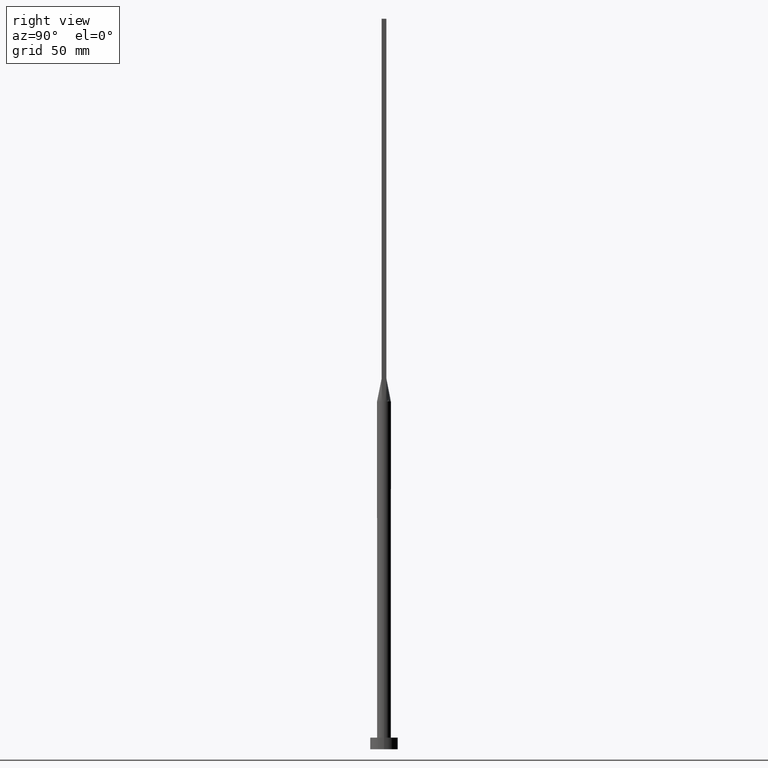
[diagram: clean part render]
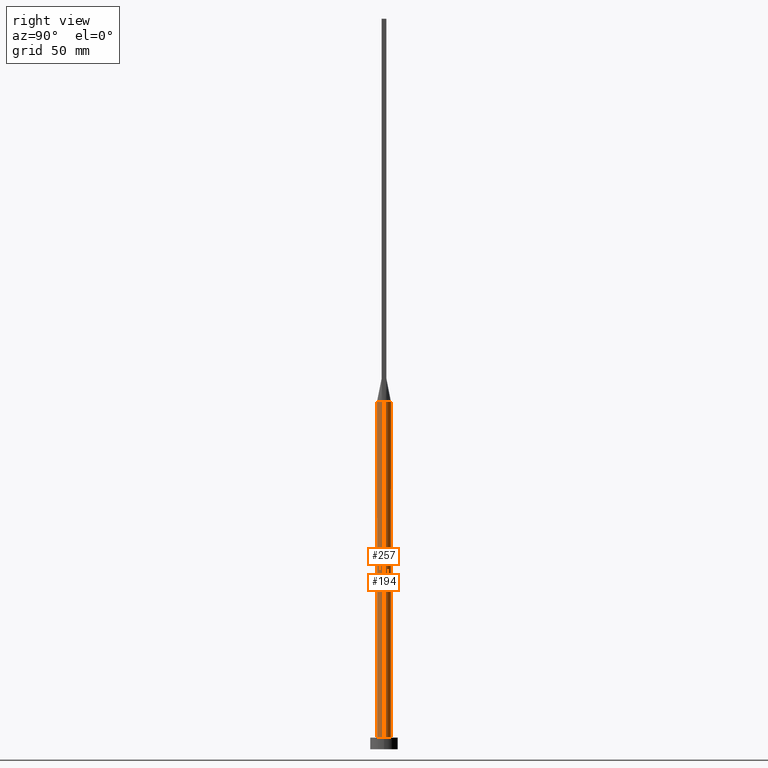
[diagram: same view with one multi-face feature highlighted, each face labeled with its STEP entity id]
A machine part, right view. The highlighted faces form ONE feature: a constant-radius fillet chain: 2 tangent blend faces with common blend radius 3 mm. The faces share edges in the B-rep.
Their STEP definitions:
[1] entity #257 (Cylinder):
#8 = VECTOR ( 'NONE', #148, 1000.000000000000000 ) ;
#11 = AXIS2_PLACEMENT_3D ( 'NONE', #69, #274, #497 ) ;
#15 = LINE ( 'NONE', #581, #8 ) ;
#20 = EDGE_CURVE ( 'NONE', #365, #25, #297, .T. ) ;
#25 = VERTEX_POINT ( 'NONE', #481 ) ;
#28 = ORIENTED_EDGE ( 'NONE', *, *, #20, .T. ) ;
#51 = CARTESIAN_POINT ( 'NONE',  ( 0.000000000000000000, 0.000000000000000000, 150.0000000000000000 ) ) ;
#54 = DIRECTION ( 'NONE',  ( 1.000000000000000000, 0.000000000000000000, 0.000000000000000000 ) ) ;
#57 = CARTESIAN_POINT ( 'NONE',  ( 2.819430526142641558, -1.025247683279450817, 150.0000000000000000 ) ) ;
#67 = EDGE_CURVE ( 'NONE', #544, #119, #183, .T. ) ;
#69 = CARTESIAN_POINT ( 'NONE',  ( 0.000000000000000000, 0.000000000000000000, 150.0000000000000000 ) ) ;
#70 = ORIENTED_EDGE ( 'NONE', *, *, #67, .F. ) ;
#93 = DIRECTION ( 'NONE',  ( 0.000000000000000000, 0.000000000000000000, 1.000000000000000000 ) ) ;
#99 = AXIS2_PLACEMENT_3D ( 'NONE', #173, #534, #509 ) ;
#100 = DIRECTION ( 'NONE',  ( 1.000000000000000000, 0.000000000000000000, 0.000000000000000000 ) ) ;
#119 = VERTEX_POINT ( 'NONE', #57 ) ;
#130 = EDGE_CURVE ( 'NONE', #25, #427, #448, .T. ) ;
#141 = VECTOR ( 'NONE', #488, 1000.000000000000000 ) ;
#148 = DIRECTION ( 'NONE',  ( -0.000000000000000000, -0.000000000000000000, -1.000000000000000000 ) ) ;
#173 = CARTESIAN_POINT ( 'NONE',  ( 0.000000000000000000, 0.000000000000000000, 150.0000000000000000 ) ) ;
#183 = CIRCLE ( 'NONE', #482, 3.000000000000000444 ) ;
#185 = EDGE_CURVE ( 'NONE', #365, #544, #277, .T. ) ;
#202 = CARTESIAN_POINT ( 'NONE',  ( 3.000000000000000444, 3.673940397442060361E-16, 5.000000000000000000 ) ) ;
#203 = CARTESIAN_POINT ( 'NONE',  ( -3.000000000000000444, 0.000000000000000000, 150.0000000000000000 ) ) ;
#230 = ORIENTED_EDGE ( 'NONE', *, *, #542, .F. ) ;
#239 = FACE_OUTER_BOUND ( 'NONE', #380, .T. ) ;
#257 = ADVANCED_FACE ( 'NONE', ( #239 ), #554, .T. ) ;
#274 = DIRECTION ( 'NONE',  ( 0.000000000000000000, 0.000000000000000000, 1.000000000000000000 ) ) ;
#277 = CIRCLE ( 'NONE', #99, 3.000000000000000444 ) ;
#285 = DIRECTION ( 'NONE',  ( -0.000000000000000000, -0.000000000000000000, -1.000000000000000000 ) ) ;
#297 = LINE ( 'NONE', #203, #141 ) ;
#323 = CARTESIAN_POINT ( 'NONE',  ( 0.000000000000000000, 0.000000000000000000, 150.0000000000000000 ) ) ;
#324 = VERTEX_POINT ( 'NONE', #464 ) ;
#332 = ORIENTED_EDGE ( 'NONE', *, *, #571, .F. ) ;
#365 = VERTEX_POINT ( 'NONE', #468 ) ;
#368 = CARTESIAN_POINT ( 'NONE',  ( 0.000000000000000000, 0.000000000000000000, 5.000000000000000000 ) ) ;
#379 = AXIS2_PLACEMENT_3D ( 'NONE', #323, #285, #387 ) ;
#380 = EDGE_LOOP ( 'NONE', ( #332, #230, #70, #400, #28, #389 ) ) ;
#387 = DIRECTION ( 'NONE',  ( -1.000000000000000000, 0.000000000000000000, 0.000000000000000000 ) ) ;
#389 = ORIENTED_EDGE ( 'NONE', *, *, #130, .T. ) ;
#400 = ORIENTED_EDGE ( 'NONE', *, *, #185, .F. ) ;
#405 = CIRCLE ( 'NONE', #11, 3.000000000000000444 ) ;
#427 = VERTEX_POINT ( 'NONE', #202 ) ;
#448 = CIRCLE ( 'NONE', #473, 3.000000000000000444 ) ;
#458 = DIRECTION ( 'NONE',  ( 0.000000000000000000, 0.000000000000000000, 1.000000000000000000 ) ) ;
#464 = CARTESIAN_POINT ( 'NONE',  ( 3.000000000000000444, 7.514166843208536743E-18, 149.9999999999999716 ) ) ;
#468 = CARTESIAN_POINT ( 'NONE',  ( -3.000000000000000444, -1.370010780910363192E-16, 149.9999999999999716 ) ) ;
#473 = AXIS2_PLACEMENT_3D ( 'NONE', #368, #458, #54 ) ;
#481 = CARTESIAN_POINT ( 'NONE',  ( -3.000000000000000444, 0.000000000000000000, 5.000000000000000000 ) ) ;
#482 = AXIS2_PLACEMENT_3D ( 'NONE', #51, #93, #100 ) ;
#488 = DIRECTION ( 'NONE',  ( -0.000000000000000000, -0.000000000000000000, -1.000000000000000000 ) ) ;
#497 = DIRECTION ( 'NONE',  ( 1.000000000000000000, 8.881784197001252323E-16, 0.000000000000000000 ) ) ;
#509 = DIRECTION ( 'NONE',  ( 1.000000000000000000, 0.000000000000000000, 0.000000000000000000 ) ) ;
#534 = DIRECTION ( 'NONE',  ( 0.000000000000000000, 0.000000000000000000, 1.000000000000000000 ) ) ;
#538 = CARTESIAN_POINT ( 'NONE',  ( -2.819413526938078007, -1.025241406939941369, 150.0000000000000000 ) ) ;
#542 = EDGE_CURVE ( 'NONE', #119, #324, #405, .T. ) ;
#544 = VERTEX_POINT ( 'NONE', #538 ) ;
#554 = CYLINDRICAL_SURFACE ( 'NONE', #379, 3.000000000000000444 ) ;
#571 = EDGE_CURVE ( 'NONE', #324, #427, #15, .T. ) ;
#581 = CARTESIAN_POINT ( 'NONE',  ( 3.000000000000000444, 3.673940397442060361E-16, 150.0000000000000000 ) ) ;
[2] entity #194 (Cylinder):
#8 = VECTOR ( 'NONE', #148, 1000.000000000000000 ) ;
#10 = EDGE_CURVE ( 'NONE', #427, #25, #527, .T. ) ;
#15 = LINE ( 'NONE', #581, #8 ) ;
#20 = EDGE_CURVE ( 'NONE', #365, #25, #297, .T. ) ;
#24 = CYLINDRICAL_SURFACE ( 'NONE', #235, 3.000000000000000444 ) ;
#25 = VERTEX_POINT ( 'NONE', #481 ) ;
#31 = CARTESIAN_POINT ( 'NONE',  ( 0.000000000000000000, 0.000000000000000000, 5.000000000000000000 ) ) ;
#44 = CIRCLE ( 'NONE', #367, 3.000000000000000444 ) ;
#47 = EDGE_CURVE ( 'NONE', #574, #365, #44, .T. ) ;
#53 = CARTESIAN_POINT ( 'NONE',  ( -2.739088299662392423, 1.246032108968142316, 150.0000000000000284 ) ) ;
#55 = EDGE_LOOP ( 'NONE', ( #129, #113, #430, #321, #359, #271 ) ) ;
#56 = CARTESIAN_POINT ( 'NONE',  ( 2.625980160873452540, 1.476334031700886618, 150.0000000000000000 ) ) ;
#72 = CARTESIAN_POINT ( 'NONE',  ( 2.739088299662392867, 1.246032108968142538, 150.0000000000000568 ) ) ;
#81 = DIRECTION ( 'NONE',  ( 1.000000000000000000, 0.000000000000000000, 0.000000000000000000 ) ) ;
#85 = EDGE_CURVE ( 'NONE', #324, #335, #413, .T. ) ;
#94 = CARTESIAN_POINT ( 'NONE',  ( 1.338960936578149630, 2.706038443291637563, 150.0000000000000000 ) ) ;
#113 = ORIENTED_EDGE ( 'NONE', *, *, #571, .T. ) ;
#129 = ORIENTED_EDGE ( 'NONE', *, *, #85, .F. ) ;
#140 = DIRECTION ( 'NONE',  ( 0.000000000000000000, 0.000000000000000000, 1.000000000000000000 ) ) ;
#141 = VECTOR ( 'NONE', #488, 1000.000000000000000 ) ;
#148 = DIRECTION ( 'NONE',  ( -0.000000000000000000, -0.000000000000000000, -1.000000000000000000 ) ) ;
#152 = CARTESIAN_POINT ( 'NONE',  ( -2.819429393986302657, 1.025247261300842760, 150.0000000000000000 ) ) ;
#172 = DIRECTION ( 'NONE',  ( 0.000000000000000000, 0.000000000000000000, 1.000000000000000000 ) ) ;
#176 = CARTESIAN_POINT ( 'NONE',  ( -1.627925520694712747, 2.539128397820341831, 150.0000000000000284 ) ) ;
#179 = CARTESIAN_POINT ( 'NONE',  ( 2.314486317179579977, 1.928337902455807384, 150.0000000000000568 ) ) ;
#192 = CARTESIAN_POINT ( 'NONE',  ( -2.819429393986302657, 1.025247261300842760, 150.0000000000000000 ) ) ;
#194 = ADVANCED_FACE ( 'NONE', ( #282 ), #24, .T. ) ;
#202 = CARTESIAN_POINT ( 'NONE',  ( 3.000000000000000444, 3.673940397442060361E-16, 5.000000000000000000 ) ) ;
#203 = CARTESIAN_POINT ( 'NONE',  ( -3.000000000000000444, 0.000000000000000000, 150.0000000000000000 ) ) ;
#213 = DIRECTION ( 'NONE',  ( 0.000000000000000000, 0.000000000000000000, 1.000000000000000000 ) ) ;
#224 = CARTESIAN_POINT ( 'NONE',  ( -2.625980160873452096, 1.476334031700886396, 150.0000000000000000 ) ) ;
#231 = CARTESIAN_POINT ( 'NONE',  ( -1.338960936578149408, 2.706038443291637119, 150.0000000000000284 ) ) ;
#235 = AXIS2_PLACEMENT_3D ( 'NONE', #506, #372, #549 ) ;
#242 = CARTESIAN_POINT ( 'NONE',  ( -2.314486317179579977, 1.928337902455808051, 150.0000000000000284 ) ) ;
#246 = CARTESIAN_POINT ( 'NONE',  ( -2.115507543051069916, 2.149870311632977593, 150.0000000000000568 ) ) ;
#271 = ORIENTED_EDGE ( 'NONE', *, *, #545, .F. ) ;
#275 = AXIS2_PLACEMENT_3D ( 'NONE', #31, #172, #343 ) ;
#282 = FACE_OUTER_BOUND ( 'NONE', #55, .T. ) ;
#297 = LINE ( 'NONE', #203, #141 ) ;
#313 = CARTESIAN_POINT ( 'NONE',  ( -0.3502136323054376721, 2.999999999999999112, 150.0000000000000284 ) ) ;
#315 = CARTESIAN_POINT ( 'NONE',  ( 0.6998073349918605413, 2.936959335800557014, 150.0000000000000000 ) ) ;
#321 = ORIENTED_EDGE ( 'NONE', *, *, #20, .F. ) ;
#324 = VERTEX_POINT ( 'NONE', #464 ) ;
#335 = VERTEX_POINT ( 'NONE', #515 ) ;
#343 = DIRECTION ( 'NONE',  ( 1.000000000000000000, 0.000000000000000000, 0.000000000000000000 ) ) ;
#359 = ORIENTED_EDGE ( 'NONE', *, *, #47, .F. ) ;
#360 = CARTESIAN_POINT ( 'NONE',  ( 2.115507543051069916, 2.149870311632976705, 150.0000000000000284 ) ) ;
#365 = VERTEX_POINT ( 'NONE', #468 ) ;
#367 = AXIS2_PLACEMENT_3D ( 'NONE', #566, #213, #81 ) ;
#372 = DIRECTION ( 'NONE',  ( -0.000000000000000000, -0.000000000000000000, -1.000000000000000000 ) ) ;
#413 = CIRCLE ( 'NONE', #491, 3.000000000000000444 ) ;
#427 = VERTEX_POINT ( 'NONE', #202 ) ;
#430 = ORIENTED_EDGE ( 'NONE', *, *, #10, .T. ) ;
#440 = B_SPLINE_CURVE_WITH_KNOTS ( 'NONE', 3,
 ( #495, #72, #56, #179, #360, #455, #94, #315, #452, #313, #555, #231, #176, #246, #242, #224, #53, #192 ),
 .UNSPECIFIED., .F., .F.,
 ( 4, 2, 2, 2, 2, 2, 2, 2, 4 ),
 ( 0.000000000000000000, 0.1249999999999998890, 0.2499999999999997780, 0.3749999999999997780, 0.4999999999999997780, 0.6249999999999997780, 0.7499999999999997780, 0.8749999999999998890, 1.000000000000000000 ),
 .UNSPECIFIED. ) ;
#452 = CARTESIAN_POINT ( 'NONE',  ( 0.3502136323054376721, 3.000000000000000444, 150.0000000000000000 ) ) ;
#455 = CARTESIAN_POINT ( 'NONE',  ( 1.627925520694712080, 2.539128397820340943, 150.0000000000000000 ) ) ;
#464 = CARTESIAN_POINT ( 'NONE',  ( 3.000000000000000444, 7.514166843208536743E-18, 149.9999999999999716 ) ) ;
#468 = CARTESIAN_POINT ( 'NONE',  ( -3.000000000000000444, -1.370010780910363192E-16, 149.9999999999999716 ) ) ;
#481 = CARTESIAN_POINT ( 'NONE',  ( -3.000000000000000444, 0.000000000000000000, 5.000000000000000000 ) ) ;
#488 = DIRECTION ( 'NONE',  ( -0.000000000000000000, -0.000000000000000000, -1.000000000000000000 ) ) ;
#490 = DIRECTION ( 'NONE',  ( 1.000000000000000000, 0.000000000000000000, 0.000000000000000000 ) ) ;
#491 = AXIS2_PLACEMENT_3D ( 'NONE', #541, #140, #490 ) ;
#495 = CARTESIAN_POINT ( 'NONE',  ( 2.819412401233197141, 1.025240989080170806, 150.0000000000000000 ) ) ;
#506 = CARTESIAN_POINT ( 'NONE',  ( 0.000000000000000000, 0.000000000000000000, 150.0000000000000000 ) ) ;
#515 = CARTESIAN_POINT ( 'NONE',  ( 2.819412401233197141, 1.025240989080170806, 150.0000000000000000 ) ) ;
#527 = CIRCLE ( 'NONE', #275, 3.000000000000000444 ) ;
#541 = CARTESIAN_POINT ( 'NONE',  ( 0.000000000000000000, 0.000000000000000000, 150.0000000000000000 ) ) ;
#545 = EDGE_CURVE ( 'NONE', #335, #574, #440, .T. ) ;
#549 = DIRECTION ( 'NONE',  ( -1.000000000000000000, 0.000000000000000000, 0.000000000000000000 ) ) ;
#555 = CARTESIAN_POINT ( 'NONE',  ( -0.6998073349918608743, 2.936959335800557014, 150.0000000000000000 ) ) ;
#566 = CARTESIAN_POINT ( 'NONE',  ( 0.000000000000000000, 0.000000000000000000, 150.0000000000000000 ) ) ;
#571 = EDGE_CURVE ( 'NONE', #324, #427, #15, .T. ) ;
#574 = VERTEX_POINT ( 'NONE', #152 ) ;
#581 = CARTESIAN_POINT ( 'NONE',  ( 3.000000000000000444, 3.673940397442060361E-16, 150.0000000000000000 ) ) ;